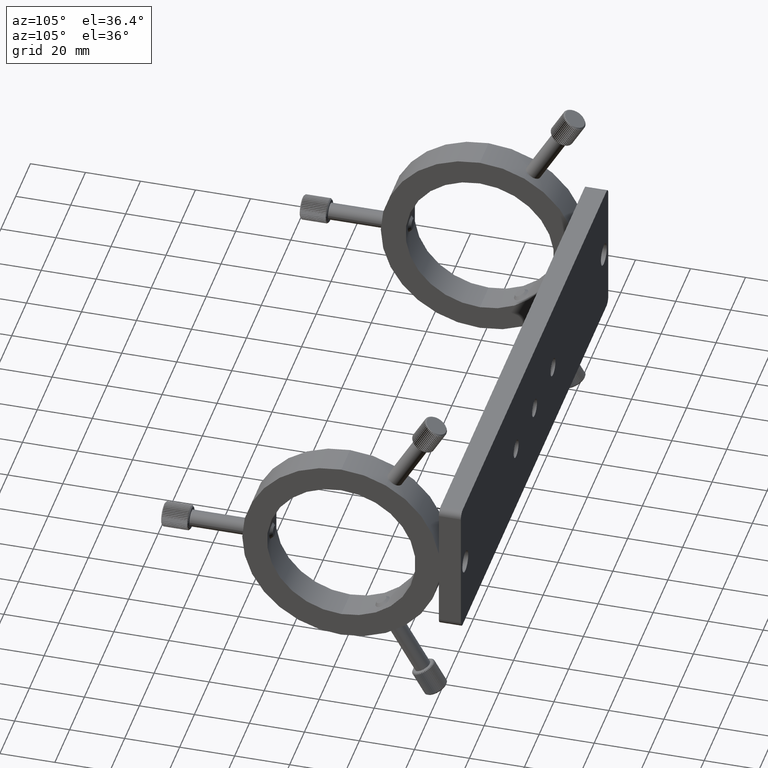
[diagram: clean part render]
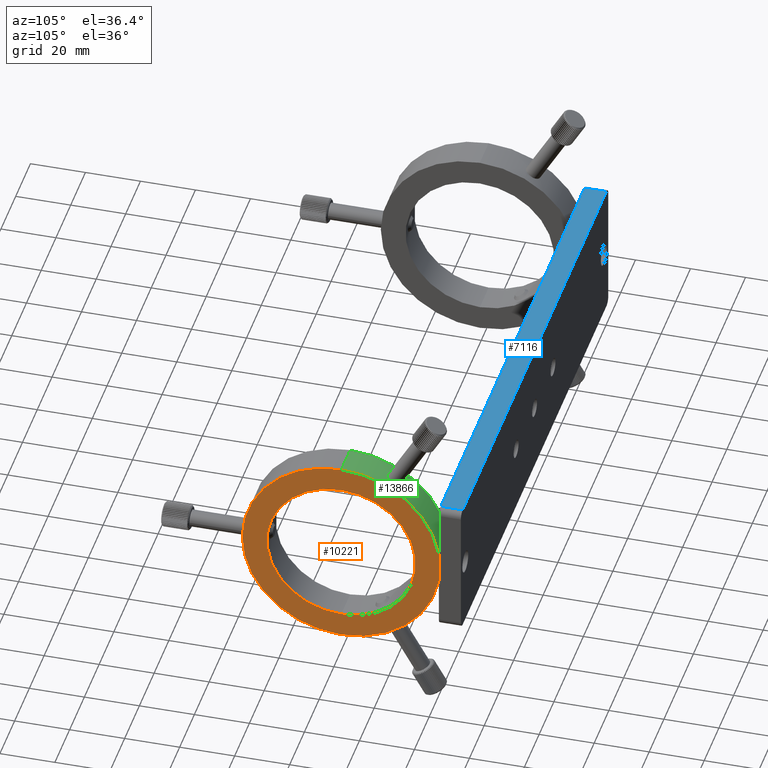
[diagram: same view with three faces highlighted in distinct colors, each labeled with its STEP entity id]
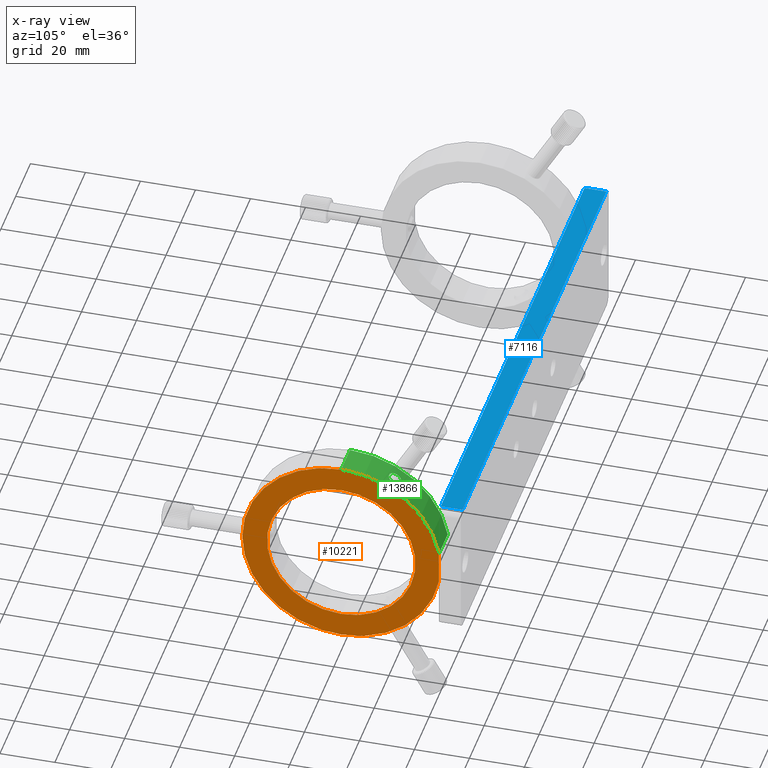
[diagram: x-ray of the same camera — body ghosted, the three highlighted faces saturated]
A machine part, auxiliary view with three faces highlighted in distinct colors.
The next image is the same camera in x-ray (body ghosted, the three faces saturated) — at least one of them is partly hidden behind the body in this view.
Their STEP definitions:

[orange] entity #10221 — the highlighted planar face has unit normal (-1, 0, -0).
#418 = EDGE_CURVE ( 'NONE', #11633, #23366, #13022, .T. ) ;
#1680 = DIRECTION ( 'NONE',  ( 0.0000000000000000000, 0.0000000000000000000, -1.000000000000000000 ) ) ;
#2276 = DIRECTION ( 'NONE',  ( 5.551115123125781500E-017, -1.304967817715799300E-033, -1.000000000000000000 ) ) ;
#2678 = CARTESIAN_POINT ( 'NONE',  ( 96.36693914623076300, -17.41295791704508400, -5.979130371550692900 ) ) ;
#3003 = CARTESIAN_POINT ( 'NONE',  ( 96.36693914623073500, -52.91295791704508400, 1.247613123922518600E-014 ) ) ;
#3294 = CARTESIAN_POINT ( 'NONE',  ( 96.36693914623072000, -17.41295791704509100, 5.979130371550716900 ) ) ;
#7073 = DIRECTION ( 'NONE',  ( -1.000000000000000000, 1.908848771941423400E-032, -5.551115123125761700E-017 ) ) ;
#7185 = CARTESIAN_POINT ( 'NONE',  ( 96.36693914623073500, -52.91295791704508400, 1.247613123922518600E-014 ) ) ;
#7610 = CIRCLE ( 'NONE', #16696, 36.00000000000003600 ) ;
#7696 = ORIENTED_EDGE ( 'NONE', *, *, #29574, .T. ) ;
#8077 = DIRECTION ( 'NONE',  ( -1.000000000000000000, 1.908848771941423400E-032, -5.551115123125761700E-017 ) ) ;
#9218 = CARTESIAN_POINT ( 'NONE',  ( 96.36693914623073500, -52.91295791704508400, 1.247613123922518600E-014 ) ) ;
#9272 = EDGE_CURVE ( 'NONE', #17583, #14291, #7610, .T. ) ;
#9400 = ORIENTED_EDGE ( 'NONE', *, *, #9272, .F. ) ;
#9744 = DIRECTION ( 'NONE',  ( 0.0000000000000000000, 0.0000000000000000000, -1.000000000000000000 ) ) ;
#10221 = ADVANCED_FACE ( 'NONE', ( #25869, #11977 ), #13497, .F. ) ;
#11633 = VERTEX_POINT ( 'NONE', #28189 ) ;
#11977 = FACE_BOUND ( 'NONE', #16152, .T. ) ;
#13022 = CIRCLE ( 'NONE', #19714, 27.00000000000003200 ) ;
#13485 = EDGE_CURVE ( 'NONE', #26243, #17583, #18576, .T. ) ;
#13497 = PLANE ( 'NONE',  #22670 ) ;
#14291 = VERTEX_POINT ( 'NONE', #32509 ) ;
#14519 = DIRECTION ( 'NONE',  ( -1.000000000000000000, 1.908848771941423400E-032, -5.551115123125761700E-017 ) ) ;
#14959 = ORIENTED_EDGE ( 'NONE', *, *, #418, .T. ) ;
#15086 = VECTOR ( 'NONE', #2276, 1000.000000000000000 ) ;
#15459 = VERTEX_POINT ( 'NONE', #3294 ) ;
#15881 = LINE ( 'NONE', #24895, #15086 ) ;
#16152 = EDGE_LOOP ( 'NONE', ( #14959, #7696 ) ) ;
#16196 = AXIS2_PLACEMENT_3D ( 'NONE', #7185, #7073, #9744 ) ;
#16254 = CIRCLE ( 'NONE', #25302, 27.00000000000003200 ) ;
#16696 = AXIS2_PLACEMENT_3D ( 'NONE', #3003, #8077, #28353 ) ;
#16752 = DIRECTION ( 'NONE',  ( -1.000000000000000000, 1.908848771941423400E-032, -5.551115123125761700E-017 ) ) ;
#17287 = DIRECTION ( 'NONE',  ( 0.0000000000000000000, 0.0000000000000000000, -1.000000000000000000 ) ) ;
#17583 = VERTEX_POINT ( 'NONE', #19577 ) ;
#17906 = AXIS2_PLACEMENT_3D ( 'NONE', #29822, #14519, #17287 ) ;
#18294 = ORIENTED_EDGE ( 'NONE', *, *, #22908, .F. ) ;
#18576 = CIRCLE ( 'NONE', #16196, 36.00000000000003600 ) ;
#19577 = CARTESIAN_POINT ( 'NONE',  ( 96.36693914623073500, -52.91295791704509100, -35.99999999999998600 ) ) ;
#19714 = AXIS2_PLACEMENT_3D ( 'NONE', #9218, #16752, #1680 ) ;
#20187 = CARTESIAN_POINT ( 'NONE',  ( 96.36693914623073500, -52.91295791704508400, 1.247613123922518600E-014 ) ) ;
#21130 = DIRECTION ( 'NONE',  ( -1.000000000000000000, 1.908848771941423700E-032, -5.551115123125761700E-017 ) ) ;
#21238 = ORIENTED_EDGE ( 'NONE', *, *, #23487, .F. ) ;
#22670 = AXIS2_PLACEMENT_3D ( 'NONE', #28655, #21130, #31009 ) ;
#22908 = EDGE_CURVE ( 'NONE', #14291, #15459, #23862, .T. ) ;
#23366 = VERTEX_POINT ( 'NONE', #29557 ) ;
#23487 = EDGE_CURVE ( 'NONE', #15459, #26243, #15881, .T. ) ;
#23862 = CIRCLE ( 'NONE', #17906, 36.00000000000003600 ) ;
#24895 = CARTESIAN_POINT ( 'NONE',  ( 96.36693914623072000, -17.41295791704509100, 5.979130371550716900 ) ) ;
#25302 = AXIS2_PLACEMENT_3D ( 'NONE', #20187, #32956, #25500 ) ;
#25500 = DIRECTION ( 'NONE',  ( 0.0000000000000000000, 0.0000000000000000000, -1.000000000000000000 ) ) ;
#25869 = FACE_OUTER_BOUND ( 'NONE', #32126, .T. ) ;
#26243 = VERTEX_POINT ( 'NONE', #2678 ) ;
#28189 = CARTESIAN_POINT ( 'NONE',  ( 96.36693914623073500, -52.91295791704508400, 27.00000000000001400 ) ) ;
#28353 = DIRECTION ( 'NONE',  ( 0.0000000000000000000, 0.0000000000000000000, -1.000000000000000000 ) ) ;
#28655 = CARTESIAN_POINT ( 'NONE',  ( 96.36693914623073500, -52.91295791704508400, 1.247613123922518600E-014 ) ) ;
#29557 = CARTESIAN_POINT ( 'NONE',  ( 96.36693914623073500, -52.91295791704508400, -26.99999999999998600 ) ) ;
#29574 = EDGE_CURVE ( 'NONE', #23366, #11633, #16254, .T. ) ;
#29822 = CARTESIAN_POINT ( 'NONE',  ( 96.36693914623073500, -52.91295791704508400, 1.247613123922518600E-014 ) ) ;
#30402 = ORIENTED_EDGE ( 'NONE', *, *, #13485, .F. ) ;
#31009 = DIRECTION ( 'NONE',  ( 5.551115123125761700E-017, -1.304967817715799500E-033, -1.000000000000000000 ) ) ;
#32126 = EDGE_LOOP ( 'NONE', ( #30402, #21238, #18294, #9400 ) ) ;
#32509 = CARTESIAN_POINT ( 'NONE',  ( 96.36693914623073500, -52.91295791704508400, 36.00000000000001400 ) ) ;
#32956 = DIRECTION ( 'NONE',  ( -1.000000000000000000, 1.908848771941423400E-032, -5.551115123125761700E-017 ) ) ;

[blue] entity #7116 — the highlighted planar face has unit normal (0, -0, -1).
#41 = CARTESIAN_POINT ( 'NONE',  ( -101.1330608537693500, -9.412957917045092800, 25.00000000000000700 ) ) ;
#369 = VERTEX_POINT ( 'NONE', #13891 ) ;
#2240 = EDGE_LOOP ( 'NONE', ( #30797, #30946, #4671, #3861 ) ) ;
#2928 = LINE ( 'NONE', #19529, #8977 ) ;
#3471 = VERTEX_POINT ( 'NONE', #13248 ) ;
#3861 = ORIENTED_EDGE ( 'NONE', *, *, #23087, .T. ) ;
#4314 = VECTOR ( 'NONE', #20667, 1000.000000000000000 ) ;
#4671 = ORIENTED_EDGE ( 'NONE', *, *, #5073, .F. ) ;
#4936 = CARTESIAN_POINT ( 'NONE',  ( 93.86693914623070600, -9.412957917045092800, 25.00000000000002100 ) ) ;
#5073 = EDGE_CURVE ( 'NONE', #3471, #369, #15885, .T. ) ;
#6334 = EDGE_CURVE ( 'NONE', #369, #25013, #2928, .T. ) ;
#6369 = VECTOR ( 'NONE', #28445, 1000.000000000000000 ) ;
#6533 = FACE_OUTER_BOUND ( 'NONE', #2240, .T. ) ;
#6935 = DIRECTION ( 'NONE',  ( -1.000000000000000000, 1.438252834678955600E-032, -5.551115123125781500E-017 ) ) ;
#7068 = VERTEX_POINT ( 'NONE', #4936 ) ;
#7116 = ADVANCED_FACE ( 'NONE', ( #6533 ), #17634, .F. ) ;
#8368 = VECTOR ( 'NONE', #6935, 1000.000000000000000 ) ;
#8977 = VECTOR ( 'NONE', #12084, 1000.000000000000000 ) ;
#9546 = LINE ( 'NONE', #41, #4314 ) ;
#12084 = DIRECTION ( 'NONE',  ( 1.438252834678956100E-032, 1.000000000000000000, -3.212344377754002500E-032 ) ) ;
#12422 = CARTESIAN_POINT ( 'NONE',  ( -101.1330608537693500, -17.41295791704509100, 25.00000000000000700 ) ) ;
#12640 = DIRECTION ( 'NONE',  ( 1.000000000000000000, -1.438252834678955600E-032, 5.551115123125781500E-017 ) ) ;
#13248 = CARTESIAN_POINT ( 'NONE',  ( 93.86693914623070600, -17.41295791704509100, 25.00000000000002100 ) ) ;
#13891 = CARTESIAN_POINT ( 'NONE',  ( -101.1330608537693500, -17.41295791704509100, 25.00000000000000700 ) ) ;
#15288 = DIRECTION ( 'NONE',  ( 5.551115123125781500E-017, -3.212344377754000900E-032, -1.000000000000000000 ) ) ;
#15885 = LINE ( 'NONE', #32361, #8368 ) ;
#17634 = PLANE ( 'NONE',  #20046 ) ;
#19529 = CARTESIAN_POINT ( 'NONE',  ( -101.1330608537693500, -17.41295791704509100, 25.00000000000000700 ) ) ;
#20046 = AXIS2_PLACEMENT_3D ( 'NONE', #12422, #15288, #12640 ) ;
#20667 = DIRECTION ( 'NONE',  ( -1.000000000000000000, 1.438252834678955600E-032, -5.551115123125781500E-017 ) ) ;
#21100 = CARTESIAN_POINT ( 'NONE',  ( -101.1330608537693500, -9.412957917045092800, 25.00000000000000700 ) ) ;
#23087 = EDGE_CURVE ( 'NONE', #3471, #7068, #32224, .T. ) ;
#23572 = EDGE_CURVE ( 'NONE', #7068, #25013, #9546, .T. ) ;
#25013 = VERTEX_POINT ( 'NONE', #21100 ) ;
#26034 = CARTESIAN_POINT ( 'NONE',  ( 93.86693914623070600, -17.41295791704509100, 25.00000000000002100 ) ) ;
#28445 = DIRECTION ( 'NONE',  ( 1.438252834678956100E-032, 1.000000000000000000, -3.212344377754002500E-032 ) ) ;
#30797 = ORIENTED_EDGE ( 'NONE', *, *, #23572, .T. ) ;
#30946 = ORIENTED_EDGE ( 'NONE', *, *, #6334, .F. ) ;
#32224 = LINE ( 'NONE', #26034, #6369 ) ;
#32361 = CARTESIAN_POINT ( 'NONE',  ( -101.1330608537693500, -17.41295791704509100, 25.00000000000000700 ) ) ;

[green] entity #13866 — the highlighted cylindrical surface (partial cylindrical patch) has radius 36 mm, axis along (1, -0, 0).
#216 = CARTESIAN_POINT ( 'NONE',  ( 88.37949538483829300, -36.25000985648899400, 31.91182611467647900 ) ) ;
#443 = CARTESIAN_POINT ( 'NONE',  ( 89.11166295593152100, -33.06783110732095600, 30.03630009003354600 ) ) ;
#552 = CARTESIAN_POINT ( 'NONE',  ( 90.03654648672471700, -32.79134963972862200, 29.85164786631104100 ) ) ;
#989 = CARTESIAN_POINT ( 'NONE',  ( 90.53217347471394300, -32.79134963972861500, 29.85164786631104400 ) ) ;
#1117 = CARTESIAN_POINT ( 'NONE',  ( 84.36693914623069200, -52.91295791704508400, 1.180999742445010300E-014 ) ) ;
#1736 = CARTESIAN_POINT ( 'NONE',  ( 92.01976012141824400, -33.30698435964777800, 30.19303116294083000 ) ) ;
#2143 = CARTESIAN_POINT ( 'NONE',  ( 84.36693914623069200, -52.91295791704508400, 1.180999742445010300E-014 ) ) ;
#2203 = CARTESIAN_POINT ( 'NONE',  ( 91.17305829881603100, -32.89771986078979200, 29.92313822348243200 ) ) ;
#2303 = CARTESIAN_POINT ( 'NONE',  ( 91.17217689273560700, -37.00665215671008900, 32.29540817333486300 ) ) ;
#2673 = CARTESIAN_POINT ( 'NONE',  ( 88.19614446765841400, -33.84054108198557700, 30.53295588438158200 ) ) ;
#2779 = CARTESIAN_POINT ( 'NONE',  ( 88.37722312670499000, -33.61050104639392100, 30.38805090367766600 ) ) ;
#3134 = CARTESIAN_POINT ( 'NONE',  ( 88.83887498838686300, -33.22085283989832000, 30.13684420809834200 ) ) ;
#3294 = CARTESIAN_POINT ( 'NONE',  ( 96.36693914623072000, -17.41295791704509100, 5.979130371550716900 ) ) ;
#3497 = DIRECTION ( 'NONE',  ( 0.0000000000000000000, 0.0000000000000000000, -1.000000000000000000 ) ) ;
#4037 = EDGE_CURVE ( 'NONE', #30437, #14291, #28616, .T. ) ;
#4566 = CARTESIAN_POINT ( 'NONE',  ( 91.01631537104862000, -37.04918813631185500, 32.31627817381122000 ) ) ;
#4683 = CARTESIAN_POINT ( 'NONE',  ( 92.86699744587453200, -35.05344038381137800, 31.25802680114831500 ) ) ;
#4900 = CARTESIAN_POINT ( 'NONE',  ( 92.53607170467611800, -36.00935516545131100, 31.78500563921533100 ) ) ;
#5279 = CARTESIAN_POINT ( 'NONE',  ( 89.70831433322649700, -32.84649554215096100, 29.88900737038749300 ) ) ;
#5394 = CARTESIAN_POINT ( 'NONE',  ( 88.12098332199526900, -35.88279715201266400, 31.71744782722568700 ) ) ;
#5701 = B_SPLINE_CURVE_WITH_KNOTS ( 'NONE', 3,
 ( #17240, #19892, #24787, #22338, #24888, #29981, #14778, #28255, #216, #23384, #5394, #18066, #30600, #7752, #18297, #20508, #28148, #30939, #31046, #8200, #2673, #2779, #25844, #20621, #3134, #443, #20847, #5279, #552, #23062 ),
 .UNSPECIFIED., .F., .F.,
 ( 4, 2, 2, 2, 2, 2, 2, 2, 2, 2, 2, 2, 2, 2, 4 ),
 ( 0.007818491499208055400, 0.008307034842368778500, 0.008795578185529501600, 0.009772664871850947700, 0.01026120821501168300, 0.01074975155817241600, 0.01123829490133315200, 0.01172683824449388700, 0.01221538158765462000, 0.01270392493081535400, 0.01319246827397608900, 0.01368101161713682400, 0.01416955496029755800, 0.01465809830345829100, 0.01563518498977975500 ),
 .UNSPECIFIED. ) ;
#5805 = CIRCLE ( 'NONE', #26231, 36.00000000000003600 ) ;
#6144 = VERTEX_POINT ( 'NONE', #12894 ) ;
#7175 = CARTESIAN_POINT ( 'NONE',  ( 92.35507321848538700, -36.24916146900056900, 31.91138131461530100 ) ) ;
#7280 = CARTESIAN_POINT ( 'NONE',  ( 92.73963472718359900, -35.61397444602202700, 31.57163443884389400 ) ) ;
#7365 = VECTOR ( 'NONE', #28776, 1000.000000000000000 ) ;
#7752 = CARTESIAN_POINT ( 'NONE',  ( 87.88337591276994900, -35.19874294107058400, 31.34058266493759600 ) ) ;
#8200 = CARTESIAN_POINT ( 'NONE',  ( 88.11944301519470500, -33.96254227929361500, 30.60889944906820400 ) ) ;
#8724 = CARTESIAN_POINT ( 'NONE',  ( 84.36693914623069200, -52.91295791704508400, 36.00000000000001400 ) ) ;
#9963 = CARTESIAN_POINT ( 'NONE',  ( 92.73882414028152300, -34.21874536891542800, 30.76603745769975300 ) ) ;
#10045 = CARTESIAN_POINT ( 'NONE',  ( 84.36693914623069200, -52.91295791704508400, 36.00000000000005000 ) ) ;
#10071 = CARTESIAN_POINT ( 'NONE',  ( 92.85072877440596500, -35.19749601746831800, 31.33988073458980500 ) ) ;
#11192 = ORIENTED_EDGE ( 'NONE', *, *, #4037, .T. ) ;
#11555 = VECTOR ( 'NONE', #12699, 1000.000000000000000 ) ;
#12164 = CARTESIAN_POINT ( 'NONE',  ( 92.61415308163992700, -33.96220236134245600, 30.60868353116871900 ) ) ;
#12293 = VERTEX_POINT ( 'NONE', #24578 ) ;
#12395 = CARTESIAN_POINT ( 'NONE',  ( 91.01424891215315000, -32.85768925019052500, 29.89627423090716400 ) ) ;
#12699 = DIRECTION ( 'NONE',  ( 1.000000000000000000, -1.908848771941423400E-032, 5.551115123125761700E-017 ) ) ;
#12894 = CARTESIAN_POINT ( 'NONE',  ( 84.36693914623067800, -17.41295791704509100, 5.979130371550716900 ) ) ;
#13110 = ORIENTED_EDGE ( 'NONE', *, *, #14168, .F. ) ;
#13752 = ORIENTED_EDGE ( 'NONE', *, *, #22908, .T. ) ;
#13862 = ORIENTED_EDGE ( 'NONE', *, *, #24147, .T. ) ;
#13866 = ADVANCED_FACE ( 'NONE', ( #28438, #24481 ), #24096, .T. ) ;
#14168 = EDGE_CURVE ( 'NONE', #30437, #6144, #5805, .T. ) ;
#14291 = VERTEX_POINT ( 'NONE', #32509 ) ;
#14519 = DIRECTION ( 'NONE',  ( -1.000000000000000000, 1.908848771941423400E-032, -5.551115123125761700E-017 ) ) ;
#14646 = CARTESIAN_POINT ( 'NONE',  ( 91.89114151325361500, -33.21842257860205200, 30.13525405787643800 ) ) ;
#14705 = ORIENTED_EDGE ( 'NONE', *, *, #18751, .F. ) ;
#14778 = CARTESIAN_POINT ( 'NONE',  ( 88.83103108370583800, -36.67181555578090300, 32.12909060286512600 ) ) ;
#14818 = CARTESIAN_POINT ( 'NONE',  ( 92.25174452017378700, -36.36132680847919800, 31.96962880979714700 ) ) ;
#14871 = DIRECTION ( 'NONE',  ( 1.000000000000000000, -1.908848771941423400E-032, 5.551115123125761700E-017 ) ) ;
#14923 = CARTESIAN_POINT ( 'NONE',  ( 92.86688052545690700, -34.77092353544662700, 31.09490624713455600 ) ) ;
#15459 = VERTEX_POINT ( 'NONE', #3294 ) ;
#15535 = CARTESIAN_POINT ( 'NONE',  ( 90.36693914623069200, -32.79134963972862900, 29.85164786631104400 ) ) ;
#17240 = CARTESIAN_POINT ( 'NONE',  ( 90.36693914623069200, -37.12147665865083500, 32.35164786631097700 ) ) ;
#17287 = DIRECTION ( 'NONE',  ( 0.0000000000000000000, 0.0000000000000000000, -1.000000000000000000 ) ) ;
#17601 = CARTESIAN_POINT ( 'NONE',  ( 92.01838057640542000, -36.56924513870475100, 32.07641986271804100 ) ) ;
#17704 = CARTESIAN_POINT ( 'NONE',  ( 91.89198396253908600, -36.66171411695883400, 32.12328278265645300 ) ) ;
#17906 = AXIS2_PLACEMENT_3D ( 'NONE', #29822, #14519, #17287 ) ;
#18066 = CARTESIAN_POINT ( 'NONE',  ( 87.99538963736631600, -35.61691279601093600, 31.57324334823369200 ) ) ;
#18297 = CARTESIAN_POINT ( 'NONE',  ( 87.86707315663895200, -35.05758889586699900, 31.26040652483463900 ) ) ;
#18751 = EDGE_CURVE ( 'NONE', #6144, #15459, #21253, .T. ) ;
#18991 = EDGE_CURVE ( 'NONE', #12293, #23545, #5701, .T. ) ;
#19892 = CARTESIAN_POINT ( 'NONE',  ( 90.20378929557139700, -37.12147665865084900, 32.35164786631099800 ) ) ;
#19931 = CARTESIAN_POINT ( 'NONE',  ( 92.78682094472931400, -34.35362154839021500, 30.84764306779570500 ) ) ;
#19953 = CARTESIAN_POINT ( 'NONE',  ( 92.25030694888653200, -33.50104941048488200, 30.31816515016392100 ) ) ;
#20508 = CARTESIAN_POINT ( 'NONE',  ( 87.86680676529917400, -34.77182285998230100, 31.09544078834995400 ) ) ;
#20621 = CARTESIAN_POINT ( 'NONE',  ( 88.71316897004491900, -33.30768177520801000, 30.19348434716573900 ) ) ;
#20847 = CARTESIAN_POINT ( 'NONE',  ( 89.25730623254637000, -33.00277264890669200, 29.99313989974933000 ) ) ;
#21253 = LINE ( 'NONE', #31469, #7365 ) ;
#21279 = CARTESIAN_POINT ( 'NONE',  ( 90.36693914623069200, -32.79134963972862900, 29.85164786631104400 ) ) ;
#22118 = CARTESIAN_POINT ( 'NONE',  ( 91.47581657145798300, -33.00239563072485500, 29.99289024140166800 ) ) ;
#22338 = CARTESIAN_POINT ( 'NONE',  ( 89.71922244788116500, -37.04964642817340300, 32.31650315495970500 ) ) ;
#22383 = CARTESIAN_POINT ( 'NONE',  ( 91.47509546246671200, -36.89395757773767300, 32.23965849932099600 ) ) ;
#22493 = CARTESIAN_POINT ( 'NONE',  ( 92.53652933295785500, -33.83864005476748100, 30.53177199441090300 ) ) ;
#22908 = EDGE_CURVE ( 'NONE', #14291, #15459, #23862, .T. ) ;
#23062 = CARTESIAN_POINT ( 'NONE',  ( 90.36693914623069200, -32.79134963972862900, 29.85164786631104400 ) ) ;
#23221 = CARTESIAN_POINT ( 'NONE',  ( 91.61940217254762300, -33.06652358878522300, 30.03543413676600300 ) ) ;
#23384 = CARTESIAN_POINT ( 'NONE',  ( 88.19783214147518900, -36.00945497203401400, 31.78506051952929900 ) ) ;
#23545 = VERTEX_POINT ( 'NONE', #15535 ) ;
#23862 = CIRCLE ( 'NONE', #17906, 36.00000000000003600 ) ;
#24096 = CYLINDRICAL_SURFACE ( 'NONE', #32613, 36.00000000000003600 ) ;
#24147 = EDGE_CURVE ( 'NONE', #23545, #12293, #27210, .T. ) ;
#24384 = EDGE_LOOP ( 'NONE', ( #13110, #11192, #13752, #14705 ) ) ;
#24481 = FACE_OUTER_BOUND ( 'NONE', #24384, .T. ) ;
#24578 = CARTESIAN_POINT ( 'NONE',  ( 90.36693914623069200, -37.12147665865083500, 32.35164786631097700 ) ) ;
#24787 = CARTESIAN_POINT ( 'NONE',  ( 90.04160759527671600, -37.10722280869384800, 32.34470227474852100 ) ) ;
#24829 = CARTESIAN_POINT ( 'NONE',  ( 92.35377547613920500, -33.60722197214348500, 30.38597147789798900 ) ) ;
#24888 = CARTESIAN_POINT ( 'NONE',  ( 89.56128461887379900, -37.00645549277719900, 32.29531039454044400 ) ) ;
#25034 = CARTESIAN_POINT ( 'NONE',  ( 92.78686971896020500, -35.47739396892875200, 31.49645733387829000 ) ) ;
#25844 = CARTESIAN_POINT ( 'NONE',  ( 88.48269054672474000, -33.50189322311842200, 30.31870572878108000 ) ) ;
#26231 = AXIS2_PLACEMENT_3D ( 'NONE', #1117, #29165, #3497 ) ;
#27210 = B_SPLINE_CURVE_WITH_KNOTS ( 'NONE', 3,
 ( #21279, #989, #32182, #12395, #2203, #22118, #23221, #14646, #1736, #19953, #24829, #22493, #12164, #9963, #19931, #27464, #14923, #4683, #10071, #25034, #7280, #27363, #4900, #7175, #14818, #17601, #17704, #27785, #22383, #2303, #4566, #30124, #32605, #27672 ),
 .UNSPECIFIED., .F., .F.,
 ( 4, 2, 2, 2, 2, 2, 2, 2, 2, 2, 2, 2, 2, 2, 2, 2, 4 ),
 ( 0.0000000000000000000, 0.0004886557187005034600, 0.0009773114374010069300, 0.001465967156101510500, 0.001954622874802013900, 0.002443278593502517200, 0.002931934312203021000, 0.003420590030903524400, 0.003909245749604027700, 0.004397901468304531500, 0.004886557187005034400, 0.005375212905705538200, 0.005863868624406042000, 0.006352524343106544900, 0.006841180061807048700, 0.007329835780507551600, 0.007818491499208055400 ),
 .UNSPECIFIED. ) ;
#27363 = CARTESIAN_POINT ( 'NONE',  ( 92.61436691078905900, -35.88018254262294000, 31.71604472999748500 ) ) ;
#27464 = CARTESIAN_POINT ( 'NONE',  ( 92.85101305152993200, -34.63095898881250200, 31.01281290807240900 ) ) ;
#27672 = CARTESIAN_POINT ( 'NONE',  ( 90.36693914623069200, -37.12147665865083500, 32.35164786631097700 ) ) ;
#27785 = CARTESIAN_POINT ( 'NONE',  ( 91.62124081701033200, -36.82373863542555600, 32.20473947561625700 ) ) ;
#28148 = CARTESIAN_POINT ( 'NONE',  ( 87.88292776878533600, -34.63127623646759200, 31.01299155250080000 ) ) ;
#28255 = CARTESIAN_POINT ( 'NONE',  ( 88.48509323582318600, -36.36414438613249400, 31.97108166391273400 ) ) ;
#28438 = FACE_BOUND ( 'NONE', #32589, .T. ) ;
#28616 = LINE ( 'NONE', #10045, #11555 ) ;
#28776 = DIRECTION ( 'NONE',  ( 1.000000000000000000, -1.908848771941423400E-032, 5.551115123125761700E-017 ) ) ;
#28942 = ORIENTED_EDGE ( 'NONE', *, *, #18991, .T. ) ;
#29165 = DIRECTION ( 'NONE',  ( -1.000000000000000000, 1.908848771941423400E-032, -5.551115123125761700E-017 ) ) ;
#29822 = CARTESIAN_POINT ( 'NONE',  ( 96.36693914623073500, -52.91295791704508400, 1.247613123922518600E-014 ) ) ;
#29981 = CARTESIAN_POINT ( 'NONE',  ( 89.10998469791081800, -36.83868328126470700, 32.21231544526588000 ) ) ;
#30124 = CARTESIAN_POINT ( 'NONE',  ( 90.69587121163073100, -37.10673904766265700, 32.34446585919192800 ) ) ;
#30437 = VERTEX_POINT ( 'NONE', #8724 ) ;
#30600 = CARTESIAN_POINT ( 'NONE',  ( 87.94712745740643800, -35.47765903757492400, 31.49660119721448800 ) ) ;
#30939 = CARTESIAN_POINT ( 'NONE',  ( 87.94620880465460300, -34.35670746005550300, 30.84949106683808000 ) ) ;
#31046 = CARTESIAN_POINT ( 'NONE',  ( 87.99408594246776300, -34.22098089571601100, 30.76740114733140500 ) ) ;
#31469 = CARTESIAN_POINT ( 'NONE',  ( 84.36693914623067800, -17.41295791704509100, 5.979130371550716900 ) ) ;
#32182 = CARTESIAN_POINT ( 'NONE',  ( 90.69463634659381100, -32.80482696407324300, 29.86074486290415600 ) ) ;
#32509 = CARTESIAN_POINT ( 'NONE',  ( 96.36693914623073500, -52.91295791704508400, 36.00000000000001400 ) ) ;
#32589 = EDGE_LOOP ( 'NONE', ( #13862, #28942 ) ) ;
#32605 = CARTESIAN_POINT ( 'NONE',  ( 90.53012652488577300, -37.12147665865083500, 32.35164786631099100 ) ) ;
#32613 = AXIS2_PLACEMENT_3D ( 'NONE', #2143, #14871, #32657 ) ;
#32657 = DIRECTION ( 'NONE',  ( 0.0000000000000000000, 0.0000000000000000000, 1.000000000000000000 ) ) ;